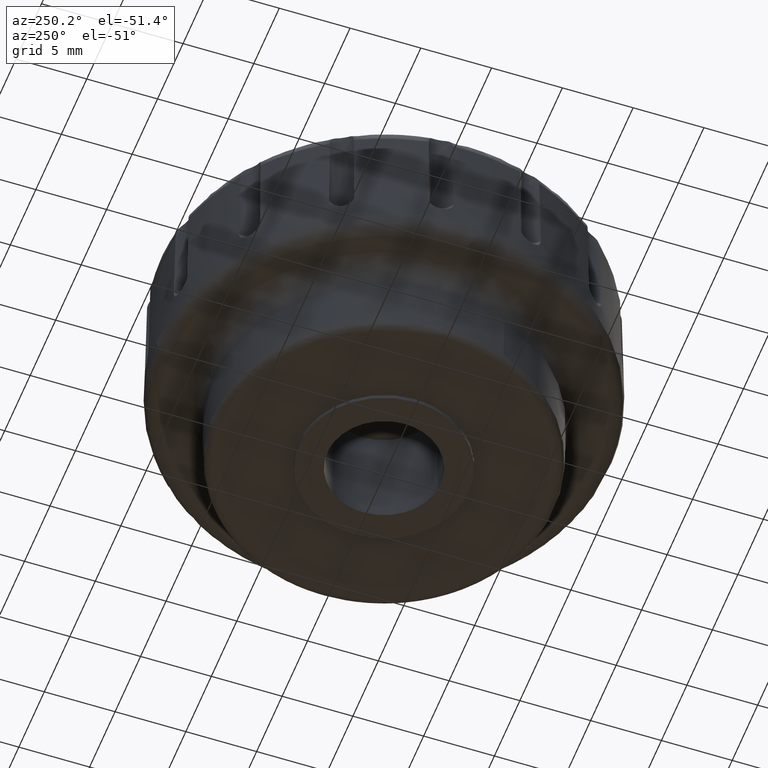
[diagram: clean part render]
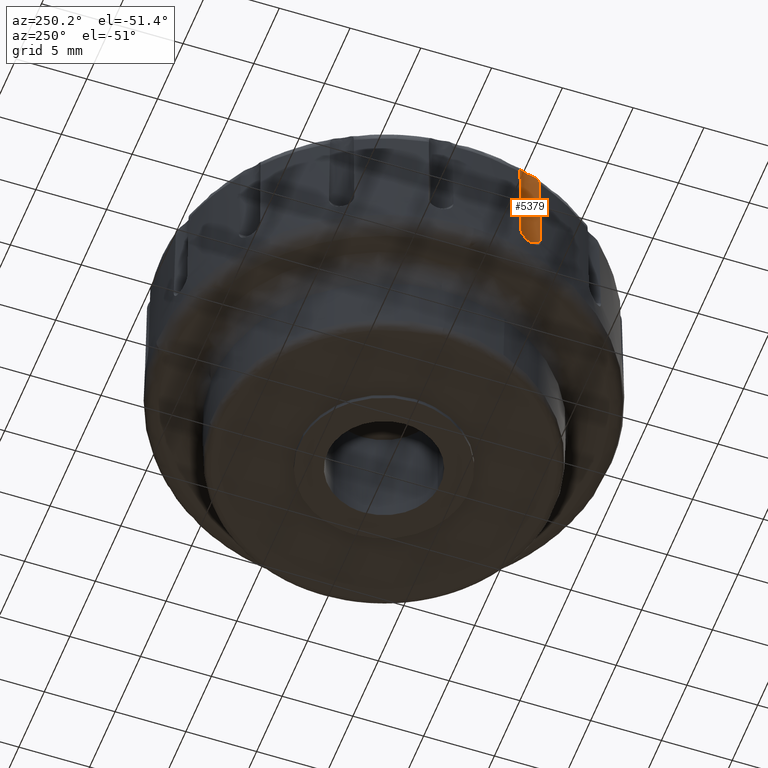
[diagram: same view with one face highlighted and labeled with its STEP entity id]
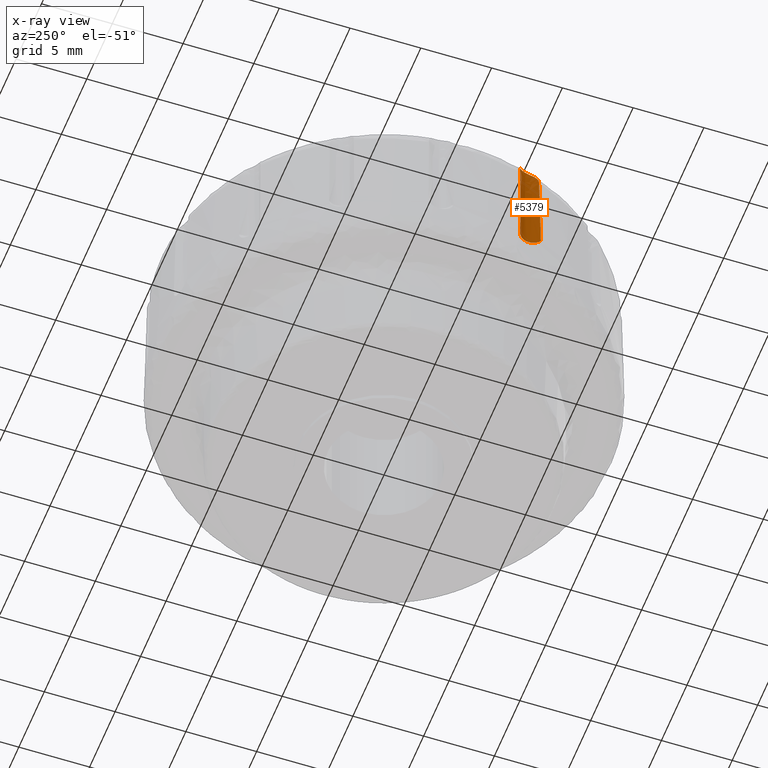
[diagram: x-ray of the same camera — body ghosted, the highlighted face saturated]
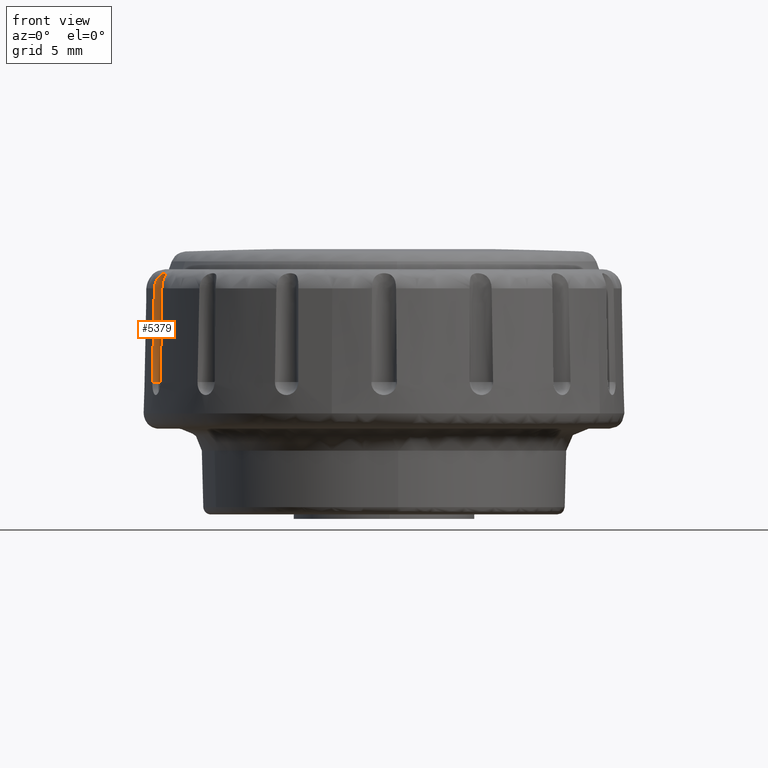
[diagram: same view with one face highlighted and labeled with its STEP entity id]
A machine part, auxiliary view. The second image highlights one B-rep face of the part: STEP entity #5379.
The next image is the same camera in x-ray: the body ghosted, the highlighted face saturated — about 0% of this face is hidden behind the body in this view.
A second angle (front view) of the same face is appended — the face is thin or edge-on in the first view.
In plain terms, the highlighted face is a freeform B-spline surface patch.
Its self-contained STEP definition (entity closure, byte-faithful):
#2124=CARTESIAN_POINT('',(-14.770252357970980,-5.642005896201249,15.326313504426750));
#2125=VERTEX_POINT('',#2124);
#2139=CARTESIAN_POINT('',(-14.871718677294639,-5.729505946571360,9.099991000000141));
#2140=VERTEX_POINT('',#2139);
#2141=CARTESIAN_POINT('',(-14.871718677294661,-5.729505946571381,9.099991000000141));
#2142=CARTESIAN_POINT('',(-14.836674250361099,-5.703570422048352,11.175456212780770));
#2143=CARTESIAN_POINT('',(-14.802790904069401,-5.674591967941154,13.250901112458671));
#2144=CARTESIAN_POINT('',(-14.770252357970980,-5.642005896201284,15.326313504426750));
#2145=QUASI_UNIFORM_CURVE('',3,(#2141,#2142,#2143,#2144),.UNSPECIFIED.,.F.,.U.);
#2146=EDGE_CURVE('',#2140,#2125,#2145,.T.);
#2148=CARTESIAN_POINT('',(-15.399192243811351,-4.106109234607756,9.099991000000120));
#2149=VERTEX_POINT('',#2148);
#2198=CARTESIAN_POINT('',(-15.265673027939449,-4.117257856262985,15.326313504426750));
#2199=VERTEX_POINT('',#2198);
#2200=CARTESIAN_POINT('',(-15.265673027939460,-4.117257856262975,15.326313504426750));
#2201=CARTESIAN_POINT('',(-15.311150874897910,-4.110020848324272,13.250901213142811));
#2202=CARTESIAN_POINT('',(-15.355596189621600,-4.106492917364391,11.175456137433750));
#2203=CARTESIAN_POINT('',(-15.399192243811379,-4.106109234607747,9.099991000000120));
#2204=QUASI_UNIFORM_CURVE('',3,(#2200,#2201,#2202,#2203),.UNSPECIFIED.,.F.,.U.);
#2205=EDGE_CURVE('',#2199,#2149,#2204,.T.);
#4193=CARTESIAN_POINT('',(-14.770252357970961,-5.642005896201253,15.326313504426750));
#4194=CARTESIAN_POINT('',(-14.769218195008269,-5.640970222745183,15.392275721103600));
#4195=CARTESIAN_POINT('',(-14.764315602954911,-5.636123078414899,15.457215844345249));
#4196=CARTESIAN_POINT('',(-14.747437852020880,-5.618429313725650,15.585084659193910));
#4197=CARTESIAN_POINT('',(-14.735415907132429,-5.605550270926956,15.648165348789490));
#4198=CARTESIAN_POINT('',(-14.705161638224331,-5.569823110764645,15.771480120165700));
#4199=CARTESIAN_POINT('',(-14.687316004707609,-5.547421183858945,15.830187260820820));
#4200=CARTESIAN_POINT('',(-14.658131275819400,-5.505391640271848,15.913622888200090));
#4201=CARTESIAN_POINT('',(-14.648003461130349,-5.489966216794810,15.940659858825750));
#4202=CARTESIAN_POINT('',(-14.627303120322120,-5.455846728110122,15.993099398981199));
#4203=CARTESIAN_POINT('',(-14.616777223112020,-5.437205624020113,16.018370617664171));
#4204=CARTESIAN_POINT('',(-14.585999144451950,-5.377274914695179,16.089836993467149));
#4205=CARTESIAN_POINT('',(-14.566215436299650,-5.331480750818302,16.132419336099570));
#4206=CARTESIAN_POINT('',(-14.532971302336509,-5.227149774513961,16.206696576304669));
#4207=CARTESIAN_POINT('',(-14.520233291243930,-5.170806858135216,16.236916716465409));
#4208=CARTESIAN_POINT('',(-14.509662752471410,-5.080280484508807,16.273372733730461));
#4209=CARTESIAN_POINT('',(-14.507571290593100,-5.048815418653670,16.284103694936650));
#4210=CARTESIAN_POINT('',(-14.506790936675131,-4.985525271530205,16.302198413553540));
#4211=CARTESIAN_POINT('',(-14.508064246670640,-4.953690736932068,16.309608231862111));
#4212=CARTESIAN_POINT('',(-14.514087815802020,-4.889718359119423,16.321470491403630));
#4213=CARTESIAN_POINT('',(-14.518836380103130,-4.857580474615825,16.325923424713810));
#4214=CARTESIAN_POINT('',(-14.532069905819780,-4.793035958981997,16.331938362176249));
#4215=CARTESIAN_POINT('',(-14.540467467163680,-4.761132730260231,16.333442616285978));
#4216=CARTESIAN_POINT('',(-14.560539688883420,-4.698853761500693,16.333568197326372));
#4217=CARTESIAN_POINT('',(-14.572240955469660,-4.668346239795925,16.332201752975379));
#4218=CARTESIAN_POINT('',(-14.598976538194810,-4.608598505456821,16.326516220408571));
#4219=CARTESIAN_POINT('',(-14.614125096058730,-4.579207978245197,16.322144624058812));
#4220=CARTESIAN_POINT('',(-14.646781804305320,-4.523434561391420,16.310487336771381));
#4221=CARTESIAN_POINT('',(-14.664360737745250,-4.496848025417235,16.303198625291241));
#4222=CARTESIAN_POINT('',(-14.701775071829109,-4.446171898718236,16.285489112634899));
#4223=CARTESIAN_POINT('',(-14.721709043467550,-4.421978367532487,16.275010779707209));
#4224=CARTESIAN_POINT('',(-14.783933149141291,-4.353822437867585,16.238602871068782));
#4225=CARTESIAN_POINT('',(-14.827469277786371,-4.315416822829372,16.208460699983160));
#4226=CARTESIAN_POINT('',(-14.893428610570901,-4.266562895454813,16.153291029476769));
#4227=CARTESIAN_POINT('',(-14.915451107552210,-4.251822820854495,16.133261844905380));
#4228=CARTESIAN_POINT('',(-14.958133479473711,-4.225661542890754,16.090859748792749));
#4229=CARTESIAN_POINT('',(-14.978945904068119,-4.214125154940350,16.068364298256721));
#4230=CARTESIAN_POINT('',(-15.019219248207699,-4.193640351254293,16.020775310077280));
#4231=CARTESIAN_POINT('',(-15.038777427109800,-4.184654242254618,15.995538181463880));
#4232=CARTESIAN_POINT('',(-15.075720025908540,-4.169067323727914,15.943208481862399));
#4233=CARTESIAN_POINT('',(-15.093089332395390,-4.162459926554590,15.916170960119119));
#4234=CARTESIAN_POINT('',(-15.125562241665209,-4.151074168575531,15.860425718516620));
#4235=CARTESIAN_POINT('',(-15.140666199815531,-4.146297127907101,15.831717933635820));
#4236=CARTESIAN_POINT('',(-15.168529113872690,-4.138152417102174,15.772672126267020));
#4237=CARTESIAN_POINT('',(-15.181305135846969,-4.134783313240919,15.742256066367609));
#4238=CARTESIAN_POINT('',(-15.215431295605100,-4.126411387561423,15.650174610634011));
#4239=CARTESIAN_POINT('',(-15.232861649149680,-4.123016755330705,15.587218446226860));
#4240=CARTESIAN_POINT('',(-15.257291610408551,-4.118545316343707,15.458347906808450));
#4241=CARTESIAN_POINT('',(-15.264225746938109,-4.117488165848780,15.392361151363790));
#4242=CARTESIAN_POINT('',(-15.265673027939449,-4.117257856262985,15.326313504426750));
#4243=B_SPLINE_CURVE_WITH_KNOTS('',3,(#4193,#4194,#4195,#4196,#4197,#4198,#4199,#4200,#4201,#4202,#4203,#4204,#4205,#4206,#4207,#4208,#4209,#4210,#4211,#4212,#4213,#4214,#4215,#4216,#4217,#4218,#4219,#4220,#4221,#4222,#4223,#4224,#4225,#4226,#4227,#4228,#4229,#4230,#4231,#4232,#4233,#4234,#4235,#4236,#4237,#4238,#4239,#4240,#4241,#4242),.UNSPECIFIED.,.F.,.U.,(4,2,2,2,2,2,2,2,2,2,2,2,2,2,2,2,2,2,2,2,2,2,2,2,4),(0.0,0.062500000000002,0.125000000000004,0.187500000000006,0.218750000000007,0.250000000000008,0.312500000000009,0.375000000000010,0.406250000000011,0.437500000000011,0.468750000000012,0.500000000000012,0.531250000000013,0.562500000000013,0.593750000000014,0.625000000000014,0.687500000000015,0.718750000000014,0.750000000000013,0.781250000000012,0.812500000000011,0.843750000000010,0.875000000000009,0.937500000000005,1.0),.UNSPECIFIED.);
#4244=EDGE_CURVE('',#2125,#2199,#4243,.T.);
#4814=CARTESIAN_POINT('',(-14.871718677294639,-5.729505946571366,9.099991000000141));
#4815=CARTESIAN_POINT('',(-14.350963102729891,-5.344107463661764,9.099991000000141));
#4816=CARTESIAN_POINT('',(-14.551161846146361,-4.727959086885729,9.099991000000141));
#4817=CARTESIAN_POINT('',(-14.751360589562825,-4.111810710109694,9.099991000000141));
#4818=CARTESIAN_POINT('',(-15.399192243811351,-4.106109234607749,9.099991000000141));
#4826=(BOUNDED_CURVE()B_SPLINE_CURVE(2,(#4814,#4815,#4816,#4817,#4818),.UNSPECIFIED.,.F.,.U.)B_SPLINE_CURVE_WITH_KNOTS((3,2,3),(0.0,0.500000000000000,1.0),.UNSPECIFIED.)CURVE()GEOMETRIC_REPRESENTATION_ITEM()RATIONAL_B_SPLINE_CURVE((1.0,0.811595594625449,1.0,0.811595594625449,1.0))REPRESENTATION_ITEM(''));
#4827=EDGE_CURVE('',#2140,#2149,#4826,.T.);
#5355=CARTESIAN_POINT('',(-14.878052114689311,-5.734150535553204,16.514345387048309));
#5356=CARTESIAN_POINT('',(-14.878052114689311,-5.734150535553204,8.914632140323915));
#5357=CARTESIAN_POINT('',(-14.339304101272646,-5.342666288091049,16.514345387048309));
#5358=CARTESIAN_POINT('',(-14.339304101272646,-5.342666288091049,8.914632140323915));
#5359=CARTESIAN_POINT('',(-14.556167673906691,-4.713000083792437,16.514345387048309));
#5360=CARTESIAN_POINT('',(-14.556167673906691,-4.713000083792437,8.914632140323915));
#5361=CARTESIAN_POINT('',(-14.773031246540741,-4.083333879493827,16.514345387048309));
#5362=CARTESIAN_POINT('',(-14.773031246540741,-4.083333879493827,8.914632140323915));
#5363=CARTESIAN_POINT('',(-15.438588804803970,-4.106624963841821,16.514345387048309));
#5364=CARTESIAN_POINT('',(-15.438588804803970,-4.106624963841821,8.914632140323915));
#5372=(BOUNDED_SURFACE()B_SPLINE_SURFACE(1,2,((#5355,#5357,#5359,#5361,#5363),(#5356,#5358,#5360,#5362,#5364)),.UNSPECIFIED.,.F.,.F.,.U.)B_SPLINE_SURFACE_WITH_KNOTS((2,2),(3,2,3),(0.0,7.599713246724391),(0.0,1.0,2.0),.UNSPECIFIED.)GEOMETRIC_REPRESENTATION_ITEM()RATIONAL_B_SPLINE_SURFACE(((1.0,0.803856860617218,1.0,0.803856860617218,1.0),(1.0,0.803856860617218,1.0,0.803856860617218,1.0)))REPRESENTATION_ITEM('')SURFACE());
#5373=ORIENTED_EDGE('',*,*,#2205,.T.);
#5374=ORIENTED_EDGE('',*,*,#4827,.F.);
#5375=ORIENTED_EDGE('',*,*,#2146,.T.);
#5376=ORIENTED_EDGE('',*,*,#4244,.T.);
#5377=EDGE_LOOP('',(#5373,#5374,#5375,#5376));
#5378=FACE_OUTER_BOUND('',#5377,.T.);
#5379=ADVANCED_FACE('',(#5378),#5372,.F.);